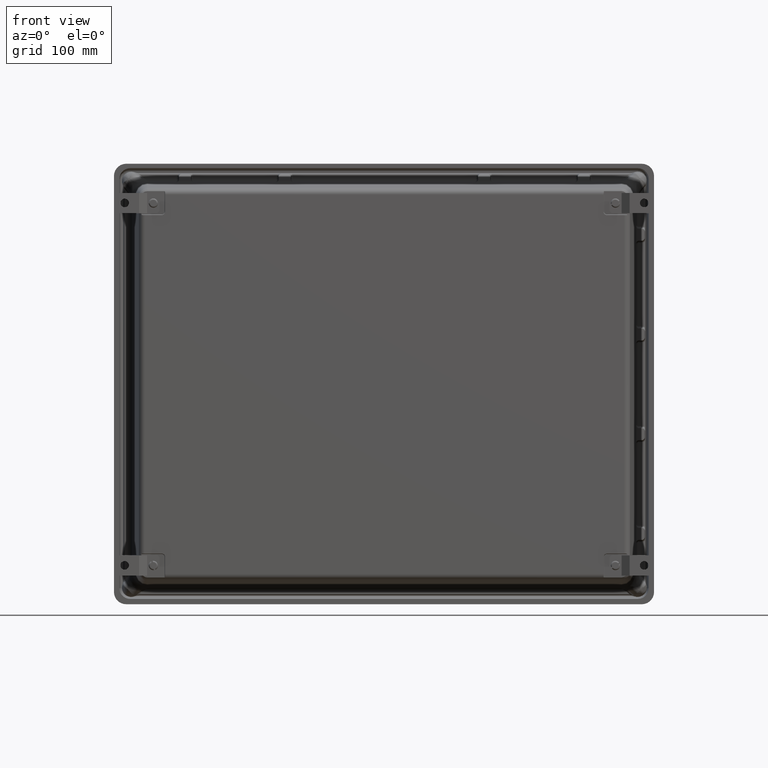
[diagram: clean part render]
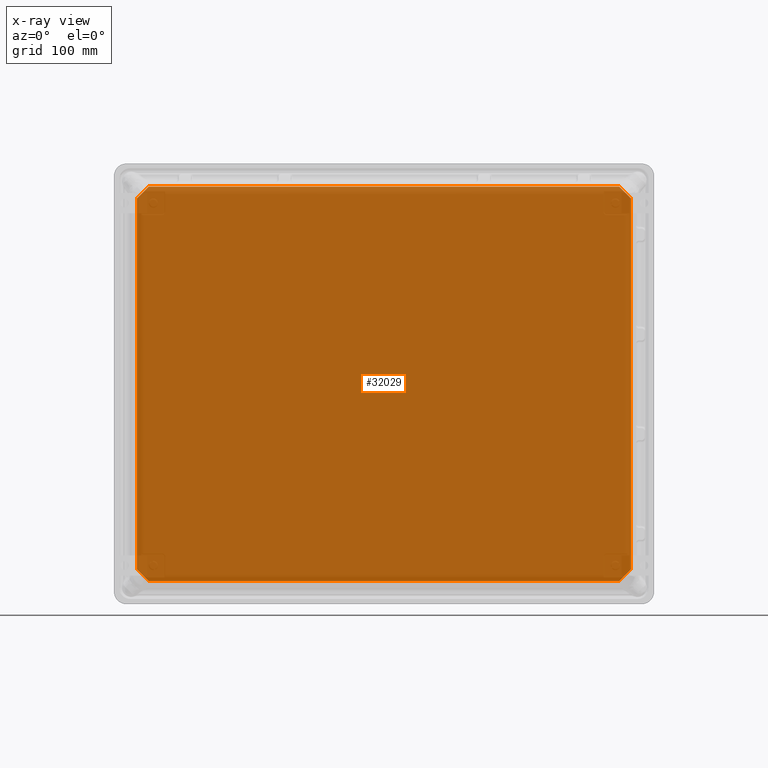
[diagram: x-ray — body ghosted, one internal face saturated and labeled with its STEP entity id]
A machine part, front view, then the same camera in x-ray: the body is ghosted and one INTERNAL B-rep face — a face not visible from any outside direction — is saturated and labeled: STEP entity #32029.
In plain terms, the highlighted planar face has unit normal (0, -1, 0).
Its self-contained STEP definition (entity closure, byte-faithful):
#92 = LINE ( 'NONE', #24255, #28368 ) ;
#439 = DIRECTION ( 'NONE',  ( 1.461662917958406600E-016, 0.0000000000000000000, -1.000000000000000000 ) ) ;
#653 = EDGE_CURVE ( 'NONE', #15058, #28261, #92, .T. ) ;
#733 = VECTOR ( 'NONE', #40039, 39.37007874015748100 ) ;
#1211 = LINE ( 'NONE', #13213, #23114 ) ;
#1240 = VERTEX_POINT ( 'NONE', #43326 ) ;
#1317 = CARTESIAN_POINT ( 'NONE',  ( 9.442008076503473300, -0.1299999999999999800, -7.924072769686829600 ) ) ;
#1334 = EDGE_CURVE ( 'NONE', #16501, #37701, #11909, .T. ) ;
#1457 = VERTEX_POINT ( 'NONE', #9618 ) ;
#1801 = EDGE_CURVE ( 'NONE', #18219, #23639, #35557, .T. ) ;
#2155 = CARTESIAN_POINT ( 'NONE',  ( -9.914683021579186600, -0.1299999999999999800, 7.460152862994095600 ) ) ;
#2781 = CARTESIAN_POINT ( 'NONE',  ( 9.917882022676671700, -0.1299999999999999500, -7.456953861896608700 ) ) ;
#3775 = ORIENTED_EDGE ( 'NONE', *, *, #5519, .T. ) ;
#3845 = CARTESIAN_POINT ( 'NONE',  ( -9.456953861896611400, -0.1299999999999999800, 7.917882022676669100 ) ) ;
#4006 = CARTESIAN_POINT ( 'NONE',  ( -9.921713424197818700, -0.1300000000000000000, -7.449785841986587400 ) ) ;
#4069 =( BOUNDED_CURVE ( )  B_SPLINE_CURVE ( 3, ( #40422, #25781, #33215, #11127 ),
 .UNSPECIFIED., .F., .F. ) 
 B_SPLINE_CURVE_WITH_KNOTS ( ( 4, 4 ),
 ( 0.0000000000000000000, 0.3926359957911200700 ),
 .UNSPECIFIED. ) 
 CURVE ( )  GEOMETRIC_REPRESENTATION_ITEM ( )  RATIONAL_B_SPLINE_CURVE ( ( 1.000000000000000000, 0.9871942890935493400, 0.9871942890935493400, 1.000000000000000000 ) ) 
 REPRESENTATION_ITEM ( '' )  );
#4292 = CARTESIAN_POINT ( 'NONE',  ( -10.35700000000000100, -0.1299999999999999800, -8.356999999999997500 ) ) ;
#4414 = CARTESIAN_POINT ( 'NONE',  ( -9.437924450141576200, -0.1299999999999999800, -7.924072769686830500 ) ) ;
#4593 = CARTESIAN_POINT ( 'NONE',  ( 9.459841421788940600, -0.1299999999999999800, 7.914994462784341600 ) ) ;
#4671 =( BOUNDED_CURVE ( )  B_SPLINE_CURVE ( 3, ( #4006, #7695, #33487, #11395 ),
 .UNSPECIFIED., .F., .F. ) 
 B_SPLINE_CURVE_WITH_KNOTS ( ( 4, 4 ),
 ( 1.438901791017705900E-014, 0.3926359957911074200 ),
 .UNSPECIFIED. ) 
 CURVE ( )  GEOMETRIC_REPRESENTATION_ITEM ( )  RATIONAL_B_SPLINE_CURVE ( ( 1.000000000000000000, 0.9871942890935511100, 0.9871942890935511100, 1.000000000000000000 ) ) 
 REPRESENTATION_ITEM ( '' )  );
#4824 =( BOUNDED_CURVE ( )  B_SPLINE_CURVE ( 3, ( #32280, #43030, #6507, #10211 ),
 .UNSPECIFIED., .F., .F. ) 
 B_SPLINE_CURVE_WITH_KNOTS ( ( 4, 4 ),
 ( 5.890549311388480400, 6.283185307179540900 ),
 .UNSPECIFIED. ) 
 CURVE ( )  GEOMETRIC_REPRESENTATION_ITEM ( )  RATIONAL_B_SPLINE_CURVE ( ( 1.000000000000000000, 0.9871942890935532200, 0.9871942890935532200, 1.000000000000000000 ) ) 
 REPRESENTATION_ITEM ( '' )  );
#4915 = ORIENTED_EDGE ( 'NONE', *, *, #11094, .T. ) ;
#5519 = EDGE_CURVE ( 'NONE', #32880, #18219, #10994, .T. ) ;
#5831 = CARTESIAN_POINT ( 'NONE',  ( 9.924072769686830500, -0.1299999999999999800, 7.437924450141573600 ) ) ;
#5919 = DIRECTION ( 'NONE',  ( 0.7071067811865468000, 0.0000000000000000000, 0.7071067811865483500 ) ) ;
#6111 = ORIENTED_EDGE ( 'NONE', *, *, #1801, .T. ) ;
#6134 = CARTESIAN_POINT ( 'NONE',  ( -9.921713424197818700, -0.1300000000000000000, -7.449785841986587400 ) ) ;
#6208 = DIRECTION ( 'NONE',  ( 0.7071067811865460200, 0.0000000000000000000, -0.7071067811865490200 ) ) ;
#6347 =( BOUNDED_CURVE ( )  B_SPLINE_CURVE ( 3, ( #4593, #26652, #34070, #11985 ),
 .UNSPECIFIED., .F., .F. ) 
 B_SPLINE_CURVE_WITH_KNOTS ( ( 4, 4 ),
 ( 5.890549311388479500, 6.283185307179572900 ),
 .UNSPECIFIED. ) 
 CURVE ( )  GEOMETRIC_REPRESENTATION_ITEM ( )  RATIONAL_B_SPLINE_CURVE ( ( 1.000000000000000000, 0.9871942890935511100, 0.9871942890935511100, 1.000000000000000000 ) ) 
 REPRESENTATION_ITEM ( '' )  );
#6395 = CARTESIAN_POINT ( 'NONE',  ( -9.924072769686823400, -0.1299999999999999800, -7.437924450141578900 ) ) ;
#6507 = CARTESIAN_POINT ( 'NONE',  ( -9.920150728876896200, -0.1300000000000000000, 7.453558522224218700 ) ) ;
#6670 = CARTESIAN_POINT ( 'NONE',  ( 9.921713424197824000, -0.1300000000000000000, -7.449785841986582100 ) ) ;
#7026 = EDGE_CURVE ( 'NONE', #38785, #34598, #8303, .T. ) ;
#7453 =( BOUNDED_CURVE ( )  B_SPLINE_CURVE ( 3, ( #39606, #13863, #43291, #21280 ),
 .UNSPECIFIED., .F., .F. ) 
 B_SPLINE_CURVE_WITH_KNOTS ( ( 4, 4 ),
 ( 5.890549311388480400, 6.283185307179527600 ),
 .UNSPECIFIED. ) 
 CURVE ( )  GEOMETRIC_REPRESENTATION_ITEM ( )  RATIONAL_B_SPLINE_CURVE ( ( 1.000000000000000000, 0.9871942890935541100, 0.9871942890935541100, 1.000000000000000000 ) ) 
 REPRESENTATION_ITEM ( '' )  );
#7517 = LINE ( 'NONE', #13604, #35785 ) ;
#7529 = CARTESIAN_POINT ( 'NONE',  ( -9.459841421788938800, -0.1299999999999999800, 7.914994462784341600 ) ) ;
#7695 = CARTESIAN_POINT ( 'NONE',  ( -9.920150728876894400, -0.1300000000000000000, -7.453558522224223100 ) ) ;
#7830 = PLANE ( 'NONE',  #41594 ) ;
#7840 = VERTEX_POINT ( 'NONE', #11826 ) ;
#8015 = EDGE_CURVE ( 'NONE', #23639, #35731, #30255, .T. ) ;
#8087 = EDGE_CURVE ( 'NONE', #35731, #46216, #4824, .T. ) ;
#8303 =( BOUNDED_CURVE ( )  B_SPLINE_CURVE ( 3, ( #6670, #17635, #39661, #32440 ),
 .UNSPECIFIED., .F., .T. ) 
 B_SPLINE_CURVE_WITH_KNOTS ( ( 4, 4 ),
 ( 0.0000000000000000000, 0.3926359957911189100 ),
 .UNSPECIFIED. ) 
 CURVE ( )  GEOMETRIC_REPRESENTATION_ITEM ( )  RATIONAL_B_SPLINE_CURVE ( ( 1.000000000000000000, 0.9871942890935493400, 0.9871942890935493400, 1.000000000000000000 ) ) 
 REPRESENTATION_ITEM ( '' )  );
#8476 = CARTESIAN_POINT ( 'NONE',  ( 9.914994462784342500, -0.1299999999999999800, 7.459841421788937100 ) ) ;
#8531 = VERTEX_POINT ( 'NONE', #16913 ) ;
#9618 = CARTESIAN_POINT ( 'NONE',  ( -9.924072769686823400, -0.1299999999999999800, -7.437924450141578900 ) ) ;
#9854 = EDGE_CURVE ( 'NONE', #7840, #14421, #24280, .T. ) ;
#10211 = CARTESIAN_POINT ( 'NONE',  ( -9.921713424197820400, -0.1300000000000000000, 7.449785841986584800 ) ) ;
#10339 = CARTESIAN_POINT ( 'NONE',  ( 9.921713424197824000, -0.1300000000000000000, -7.449785841986582100 ) ) ;
#10622 = CARTESIAN_POINT ( 'NONE',  ( -9.437924450141576200, -0.1299999999999999800, 7.924072769686826100 ) ) ;
#10994 =( BOUNDED_CURVE ( )  B_SPLINE_CURVE ( 3, ( #10622, #40069, #21746, #47445 ),
 .UNSPECIFIED., .F., .T. ) 
 B_SPLINE_CURVE_WITH_KNOTS ( ( 4, 4 ),
 ( 5.890549311388467000, 6.283185307179600400 ),
 .UNSPECIFIED. ) 
 CURVE ( )  GEOMETRIC_REPRESENTATION_ITEM ( )  RATIONAL_B_SPLINE_CURVE ( ( 1.000000000000000000, 0.9871942890935484500, 0.9871942890935484500, 1.000000000000000000 ) ) 
 REPRESENTATION_ITEM ( '' )  );
#11082 = CARTESIAN_POINT ( 'NONE',  ( -9.453558522224218700, -0.1299999999999999800, 7.920150728876894400 ) ) ;
#11094 = EDGE_CURVE ( 'NONE', #44281, #21556, #31496, .T. ) ;
#11127 = CARTESIAN_POINT ( 'NONE',  ( -9.924072769686826900, -0.1299999999999999800, 7.437924450141573600 ) ) ;
#11395 = CARTESIAN_POINT ( 'NONE',  ( -9.914994462784338900, -0.1299999999999999800, -7.459841421788941500 ) ) ;
#11400 = CARTESIAN_POINT ( 'NONE',  ( -9.924072769686823400, -0.1299999999999999800, -7.437484005765366400 ) ) ;
#11430 = CARTESIAN_POINT ( 'NONE',  ( 9.437924450141576200, -0.1299999999999999800, 7.924072769686826100 ) ) ;
#11826 = CARTESIAN_POINT ( 'NONE',  ( 9.924072769686830500, -0.1299999999999999800, 7.437924450141573600 ) ) ;
#11909 =( BOUNDED_CURVE ( )  B_SPLINE_CURVE ( 3, ( #40739, #29788, #33512, #11430 ),
 .UNSPECIFIED., .F., .F. ) 
 B_SPLINE_CURVE_WITH_KNOTS ( ( 4, 4 ),
 ( 0.0000000000000000000, 0.3926359957911194100 ),
 .UNSPECIFIED. ) 
 CURVE ( )  GEOMETRIC_REPRESENTATION_ITEM ( )  RATIONAL_B_SPLINE_CURVE ( ( 1.000000000000000000, 0.9871942890935493400, 0.9871942890935493400, 1.000000000000000000 ) ) 
 REPRESENTATION_ITEM ( '' )  );
#11952 = ORIENTED_EDGE ( 'NONE', *, *, #37217, .T. ) ;
#11985 = CARTESIAN_POINT ( 'NONE',  ( 9.449785841986585700, -0.1300000000000000000, 7.921713424197819500 ) ) ;
#12277 = DIRECTION ( 'NONE',  ( -1.461662917958407600E-016, 0.0000000000000000000, 1.000000000000000000 ) ) ;
#12449 = CARTESIAN_POINT ( 'NONE',  ( 9.924072769686830500, -0.1299999999999999800, 7.437484005765361100 ) ) ;
#12813 = ORIENTED_EDGE ( 'NONE', *, *, #32198, .T. ) ;
#13143 = ORIENTED_EDGE ( 'NONE', *, *, #25817, .T. ) ;
#13213 = CARTESIAN_POINT ( 'NONE',  ( 9.460152862994096500, -0.1299999999999999800, 7.914683021579186600 ) ) ;
#13235 = CARTESIAN_POINT ( 'NONE',  ( 9.921713424197820400, -0.1300000000000000000, 7.449785841986582100 ) ) ;
#13496 = CARTESIAN_POINT ( 'NONE',  ( -9.924072769686825200, -0.1299999999999999800, -7.442008076503475100 ) ) ;
#13548 = EDGE_CURVE ( 'NONE', #37701, #32880, #42204, .T. ) ;
#13604 = CARTESIAN_POINT ( 'NONE',  ( 9.437484005765364600, -0.1299999999999999800, -7.924072769686827800 ) ) ;
#13805 = CARTESIAN_POINT ( 'NONE',  ( -9.921713424197818700, -0.1300000000000000000, -7.449785841986587400 ) ) ;
#13863 = CARTESIAN_POINT ( 'NONE',  ( -9.456953861896614900, -0.1299999999999999800, -7.917882022676673500 ) ) ;
#14421 = VERTEX_POINT ( 'NONE', #15820 ) ;
#14556 =( BOUNDED_CURVE ( )  B_SPLINE_CURVE ( 3, ( #16410, #42143, #20114, #45830 ),
 .UNSPECIFIED., .F., .F. ) 
 B_SPLINE_CURVE_WITH_KNOTS ( ( 4, 4 ),
 ( 4.564554485381464600E-014, 0.3926359957910561800 ),
 .UNSPECIFIED. ) 
 CURVE ( )  GEOMETRIC_REPRESENTATION_ITEM ( )  RATIONAL_B_SPLINE_CURVE ( ( 1.000000000000000000, 0.9871942890935564400, 0.9871942890935564400, 1.000000000000000000 ) ) 
 REPRESENTATION_ITEM ( '' )  );
#15058 = VERTEX_POINT ( 'NONE', #40427 ) ;
#15390 = EDGE_CURVE ( 'NONE', #46387, #34809, #1211, .T. ) ;
#15394 = DIRECTION ( 'NONE',  ( 0.0000000000000000000, -0.0000000000000000000, -1.000000000000000000 ) ) ;
#15397 = ORIENTED_EDGE ( 'NONE', *, *, #19901, .T. ) ;
#15820 = CARTESIAN_POINT ( 'NONE',  ( 9.921713424197820400, -0.1300000000000000000, 7.449785841986582100 ) ) ;
#15920 = EDGE_CURVE ( 'NONE', #34809, #16501, #6347, .T. ) ;
#16410 = CARTESIAN_POINT ( 'NONE',  ( 9.449785841986587400, -0.1300000000000000000, -7.921713424197821300 ) ) ;
#16501 = VERTEX_POINT ( 'NONE', #45546 ) ;
#16913 = CARTESIAN_POINT ( 'NONE',  ( -9.914994462784338900, -0.1299999999999999800, -7.459841421788941500 ) ) ;
#17015 = CARTESIAN_POINT ( 'NONE',  ( 9.914994462784344300, -0.1299999999999999800, -7.459841421788937100 ) ) ;
#17635 = CARTESIAN_POINT ( 'NONE',  ( 9.923276119518748200, -0.1299999999999999800, -7.446013161748947300 ) ) ;
#18009 = CARTESIAN_POINT ( 'NONE',  ( -9.437484005765364600, -0.1299999999999999800, 7.924072769686825200 ) ) ;
#18219 = VERTEX_POINT ( 'NONE', #45655 ) ;
#19068 = CARTESIAN_POINT ( 'NONE',  ( -9.449785841986587400, -0.1300000000000000000, -7.921713424197823100 ) ) ;
#19160 = VECTOR ( 'NONE', #6208, 39.37007874015748900 ) ;
#19901 = EDGE_CURVE ( 'NONE', #1240, #21539, #7453, .T. ) ;
#20114 = CARTESIAN_POINT ( 'NONE',  ( 9.456953861896611400, -0.1299999999999999800, -7.917882022676673500 ) ) ;
#20334 =( BOUNDED_CURVE ( )  B_SPLINE_CURVE ( 3, ( #24982, #2781, #32418, #10339 ),
 .UNSPECIFIED., .F., .F. ) 
 B_SPLINE_CURVE_WITH_KNOTS ( ( 4, 4 ),
 ( 5.890549311388428900, 6.283185307179539200 ),
 .UNSPECIFIED. ) 
 CURVE ( )  GEOMETRIC_REPRESENTATION_ITEM ( )  RATIONAL_B_SPLINE_CURVE ( ( 1.000000000000000000, 0.9871942890935498900, 0.9871942890935498900, 1.000000000000000000 ) ) 
 REPRESENTATION_ITEM ( '' )  );
#21280 = CARTESIAN_POINT ( 'NONE',  ( -9.449785841986587400, -0.1300000000000000000, -7.921713424197823100 ) ) ;
#21539 = VERTEX_POINT ( 'NONE', #22849 ) ;
#21556 = VERTEX_POINT ( 'NONE', #37822 ) ;
#21746 = CARTESIAN_POINT ( 'NONE',  ( -9.446013161748952700, -0.1299999999999999800, 7.923276119518743800 ) ) ;
#22330 = ORIENTED_EDGE ( 'NONE', *, *, #8087, .T. ) ;
#22849 = CARTESIAN_POINT ( 'NONE',  ( -9.449785841986587400, -0.1300000000000000000, -7.921713424197823100 ) ) ;
#23114 = VECTOR ( 'NONE', #28030, 39.37007874015748900 ) ;
#23204 = ORIENTED_EDGE ( 'NONE', *, *, #36225, .T. ) ;
#23639 = VERTEX_POINT ( 'NONE', #32649 ) ;
#23690 = ORIENTED_EDGE ( 'NONE', *, *, #27639, .T. ) ;
#24255 = CARTESIAN_POINT ( 'NONE',  ( 9.914683021579186600, -0.1299999999999999800, -7.460152862994095600 ) ) ;
#24280 =( BOUNDED_CURVE ( )  B_SPLINE_CURVE ( 3, ( #5831, #27890, #35296, #13235 ),
 .UNSPECIFIED., .F., .F. ) 
 B_SPLINE_CURVE_WITH_KNOTS ( ( 4, 4 ),
 ( 5.890549311388501700, 6.283185307179599600 ),
 .UNSPECIFIED. ) 
 CURVE ( )  GEOMETRIC_REPRESENTATION_ITEM ( )  RATIONAL_B_SPLINE_CURVE ( ( 1.000000000000000000, 0.9871942890935507800, 0.9871942890935507800, 1.000000000000000000 ) ) 
 REPRESENTATION_ITEM ( '' )  );
#24541 = CARTESIAN_POINT ( 'NONE',  ( -9.460152862994096500, -0.1299999999999999800, -7.914683021579189200 ) ) ;
#24590 = EDGE_CURVE ( 'NONE', #34598, #7840, #24900, .T. ) ;
#24900 = LINE ( 'NONE', #12449, #27227 ) ;
#24982 = CARTESIAN_POINT ( 'NONE',  ( 9.914994462784344300, -0.1299999999999999800, -7.459841421788937100 ) ) ;
#25316 = CARTESIAN_POINT ( 'NONE',  ( 9.924072769686830500, -0.1299999999999999800, -7.437924450141570900 ) ) ;
#25781 = CARTESIAN_POINT ( 'NONE',  ( -9.923276119518746400, -0.1299999999999999800, 7.446013161748949100 ) ) ;
#25817 = EDGE_CURVE ( 'NONE', #30743, #44281, #7517, .T. ) ;
#26459 = CARTESIAN_POINT ( 'NONE',  ( -9.442008076503473300, -0.1299999999999999800, -7.924072769686831400 ) ) ;
#26652 = CARTESIAN_POINT ( 'NONE',  ( 9.456953861896613100, -0.1300000000000000000, 7.917882022676670900 ) ) ;
#26864 = CARTESIAN_POINT ( 'NONE',  ( -9.437924450141576200, -0.1299999999999999800, -7.924072769686830500 ) ) ;
#26865 = CARTESIAN_POINT ( 'NONE',  ( 9.921713424197820400, -0.1300000000000000000, 7.449785841986582100 ) ) ;
#27227 = VECTOR ( 'NONE', #12277, 39.37007874015748100 ) ;
#27639 = EDGE_CURVE ( 'NONE', #14421, #46387, #33489, .T. ) ;
#27645 = ORIENTED_EDGE ( 'NONE', *, *, #653, .T. ) ;
#27890 = CARTESIAN_POINT ( 'NONE',  ( 9.924072769686826900, -0.1299999999999999800, 7.442008076503469700 ) ) ;
#28030 = DIRECTION ( 'NONE',  ( -0.7071067811865474600, 0.0000000000000000000, 0.7071067811865474600 ) ) ;
#28261 = VERTEX_POINT ( 'NONE', #17015 ) ;
#28284 = CARTESIAN_POINT ( 'NONE',  ( 9.914994462784342500, -0.1299999999999999800, 7.459841421788937100 ) ) ;
#28368 = VECTOR ( 'NONE', #5919, 39.37007874015748100 ) ;
#29525 = ORIENTED_EDGE ( 'NONE', *, *, #36775, .T. ) ;
#29645 = VECTOR ( 'NONE', #439, 39.37007874015748100 ) ;
#29788 = CARTESIAN_POINT ( 'NONE',  ( 9.446013161748952700, -0.1299999999999999800, 7.923276119518745600 ) ) ;
#30255 = LINE ( 'NONE', #2155, #31432 ) ;
#30465 = EDGE_CURVE ( 'NONE', #21556, #15058, #14556, .T. ) ;
#30468 = ORIENTED_EDGE ( 'NONE', *, *, #7026, .T. ) ;
#30564 = CARTESIAN_POINT ( 'NONE',  ( 9.917882022676670000, -0.1299999999999999800, 7.456953861896608700 ) ) ;
#30743 = VERTEX_POINT ( 'NONE', #26864 ) ;
#30794 = CARTESIAN_POINT ( 'NONE',  ( 9.459841421788940600, -0.1299999999999999800, 7.914994462784341600 ) ) ;
#30974 = ORIENTED_EDGE ( 'NONE', *, *, #8015, .T. ) ;
#31432 = VECTOR ( 'NONE', #46235, 39.37007874015748100 ) ;
#31496 =( BOUNDED_CURVE ( )  B_SPLINE_CURVE ( 3, ( #42017, #1317, #45559, #45705 ),
 .UNSPECIFIED., .F., .F. ) 
 B_SPLINE_CURVE_WITH_KNOTS ( ( 4, 4 ),
 ( 5.890549311388466200, 6.283185307179631500 ),
 .UNSPECIFIED. ) 
 CURVE ( )  GEOMETRIC_REPRESENTATION_ITEM ( )  RATIONAL_B_SPLINE_CURVE ( ( 1.000000000000000000, 0.9871942890935463400, 0.9871942890935463400, 1.000000000000000000 ) ) 
 REPRESENTATION_ITEM ( '' )  );
#32029 = ADVANCED_FACE ( 'NONE', ( #44492 ), #7830, .T. ) ;
#32194 = ORIENTED_EDGE ( 'NONE', *, *, #15390, .T. ) ;
#32198 = EDGE_CURVE ( 'NONE', #8531, #1240, #38741, .T. ) ;
#32280 = CARTESIAN_POINT ( 'NONE',  ( -9.914994462784344300, -0.1299999999999999800, 7.459841421788939700 ) ) ;
#32418 = CARTESIAN_POINT ( 'NONE',  ( 9.920150728876898000, -0.1299999999999999500, -7.453558522224216000 ) ) ;
#32440 = CARTESIAN_POINT ( 'NONE',  ( 9.924072769686830500, -0.1299999999999999800, -7.437924450141570900 ) ) ;
#32649 = CARTESIAN_POINT ( 'NONE',  ( -9.459841421788938800, -0.1299999999999999800, 7.914994462784341600 ) ) ;
#32880 = VERTEX_POINT ( 'NONE', #41397 ) ;
#33215 = CARTESIAN_POINT ( 'NONE',  ( -9.924072769686826900, -0.1299999999999999800, 7.442008076503469700 ) ) ;
#33459 = VERTEX_POINT ( 'NONE', #47764 ) ;
#33487 = CARTESIAN_POINT ( 'NONE',  ( -9.917882022676668200, -0.1300000000000000000, -7.456953861896614000 ) ) ;
#33489 =( BOUNDED_CURVE ( )  B_SPLINE_CURVE ( 3, ( #26865, #45168, #30564, #8476 ),
 .UNSPECIFIED., .F., .F. ) 
 B_SPLINE_CURVE_WITH_KNOTS ( ( 4, 4 ),
 ( 1.342516025112214000E-014, 0.3926359957911314000 ),
 .UNSPECIFIED. ) 
 CURVE ( )  GEOMETRIC_REPRESENTATION_ITEM ( )  RATIONAL_B_SPLINE_CURVE ( ( 1.000000000000000000, 0.9871942890935493400, 0.9871942890935493400, 1.000000000000000000 ) ) 
 REPRESENTATION_ITEM ( '' )  );
#33512 = CARTESIAN_POINT ( 'NONE',  ( 9.442008076503473300, -0.1299999999999999800, 7.924072769686826900 ) ) ;
#33927 = CARTESIAN_POINT ( 'NONE',  ( -9.921713424197820400, -0.1300000000000000000, 7.449785841986584800 ) ) ;
#34070 = CARTESIAN_POINT ( 'NONE',  ( 9.453558522224220400, -0.1300000000000000000, 7.920150728876896200 ) ) ;
#34598 = VERTEX_POINT ( 'NONE', #25316 ) ;
#34761 = ORIENTED_EDGE ( 'NONE', *, *, #37026, .T. ) ;
#34809 = VERTEX_POINT ( 'NONE', #30794 ) ;
#35296 = CARTESIAN_POINT ( 'NONE',  ( 9.923276119518746400, -0.1299999999999999800, 7.446013161748948200 ) ) ;
#35456 = ORIENTED_EDGE ( 'NONE', *, *, #24590, .T. ) ;
#35557 =( BOUNDED_CURVE ( )  B_SPLINE_CURVE ( 3, ( #36849, #11082, #3845, #7529 ),
 .UNSPECIFIED., .F., .F. ) 
 B_SPLINE_CURVE_WITH_KNOTS ( ( 4, 4 ),
 ( 1.390708908064960100E-014, 0.3926359957910571200 ),
 .UNSPECIFIED. ) 
 CURVE ( )  GEOMETRIC_REPRESENTATION_ITEM ( )  RATIONAL_B_SPLINE_CURVE ( ( 1.000000000000000000, 0.9871942890935543300, 0.9871942890935543300, 1.000000000000000000 ) ) 
 REPRESENTATION_ITEM ( '' )  );
#35623 = ORIENTED_EDGE ( 'NONE', *, *, #9854, .T. ) ;
#35690 = ORIENTED_EDGE ( 'NONE', *, *, #41228, .T. ) ;
#35731 = VERTEX_POINT ( 'NONE', #38376 ) ;
#35785 = VECTOR ( 'NONE', #39341, 39.37007874015748100 ) ;
#35861 = CARTESIAN_POINT ( 'NONE',  ( -9.923276119518742900, -0.1299999999999999800, -7.446013161748953600 ) ) ;
#35931 = EDGE_LOOP ( 'NONE', ( #42671, #36728, #39045, #3775, #6111, #30974, #22330, #43280, #35690, #34761, #29525, #12813, #15397, #11952, #13143, #4915, #43867, #27645, #23204, #30468, #35456, #35623, #23690, #32194 ) ) ;
#36225 = EDGE_CURVE ( 'NONE', #28261, #38785, #20334, .T. ) ;
#36728 = ORIENTED_EDGE ( 'NONE', *, *, #1334, .T. ) ;
#36775 = EDGE_CURVE ( 'NONE', #39973, #8531, #4671, .T. ) ;
#36845 =( BOUNDED_CURVE ( )  B_SPLINE_CURVE ( 3, ( #19068, #41106, #26459, #4414 ),
 .UNSPECIFIED., .F., .F. ) 
 B_SPLINE_CURVE_WITH_KNOTS ( ( 4, 4 ),
 ( 0.0000000000000000000, 0.3926359957911206800 ),
 .UNSPECIFIED. ) 
 CURVE ( )  GEOMETRIC_REPRESENTATION_ITEM ( )  RATIONAL_B_SPLINE_CURVE ( ( 1.000000000000000000, 0.9871942890935493400, 0.9871942890935493400, 1.000000000000000000 ) ) 
 REPRESENTATION_ITEM ( '' )  );
#36849 = CARTESIAN_POINT ( 'NONE',  ( -9.449785841986585700, -0.1300000000000000000, 7.921713424197819500 ) ) ;
#37026 = EDGE_CURVE ( 'NONE', #1457, #39973, #40367, .T. ) ;
#37217 = EDGE_CURVE ( 'NONE', #21539, #30743, #36845, .T. ) ;
#37457 = DIRECTION ( 'NONE',  ( 0.0000000000000000000, -1.000000000000000000, 0.0000000000000000000 ) ) ;
#37501 = EDGE_CURVE ( 'NONE', #46216, #33459, #4069, .T. ) ;
#37701 = VERTEX_POINT ( 'NONE', #45846 ) ;
#37822 = CARTESIAN_POINT ( 'NONE',  ( 9.449785841986587400, -0.1300000000000000000, -7.921713424197821300 ) ) ;
#38376 = CARTESIAN_POINT ( 'NONE',  ( -9.914994462784344300, -0.1299999999999999800, 7.459841421788939700 ) ) ;
#38741 = LINE ( 'NONE', #24541, #19160 ) ;
#38785 = VERTEX_POINT ( 'NONE', #44709 ) ;
#39045 = ORIENTED_EDGE ( 'NONE', *, *, #13548, .T. ) ;
#39341 = DIRECTION ( 'NONE',  ( 1.000000000000000000, 0.0000000000000000000, 1.153165045869254200E-016 ) ) ;
#39606 = CARTESIAN_POINT ( 'NONE',  ( -9.459841421788940600, -0.1299999999999999800, -7.914994462784346000 ) ) ;
#39661 = CARTESIAN_POINT ( 'NONE',  ( 9.924072769686832300, -0.1299999999999999800, -7.442008076503468000 ) ) ;
#39973 = VERTEX_POINT ( 'NONE', #6134 ) ;
#40039 = DIRECTION ( 'NONE',  ( -1.000000000000000000, 0.0000000000000000000, 0.0000000000000000000 ) ) ;
#40069 = CARTESIAN_POINT ( 'NONE',  ( -9.442008076503473300, -0.1299999999999999800, 7.924072769686826100 ) ) ;
#40367 =( BOUNDED_CURVE ( )  B_SPLINE_CURVE ( 3, ( #6395, #13496, #35861, #13805 ),
 .UNSPECIFIED., .F., .F. ) 
 B_SPLINE_CURVE_WITH_KNOTS ( ( 4, 4 ),
 ( 5.890549311388502600, 6.283185307179600400 ),
 .UNSPECIFIED. ) 
 CURVE ( )  GEOMETRIC_REPRESENTATION_ITEM ( )  RATIONAL_B_SPLINE_CURVE ( ( 1.000000000000000000, 0.9871942890935507800, 0.9871942890935507800, 1.000000000000000000 ) ) 
 REPRESENTATION_ITEM ( '' )  );
#40422 = CARTESIAN_POINT ( 'NONE',  ( -9.921713424197820400, -0.1300000000000000000, 7.449785841986584800 ) ) ;
#40427 = CARTESIAN_POINT ( 'NONE',  ( 9.459841421788938800, -0.1299999999999999800, -7.914994462784343400 ) ) ;
#40585 = LINE ( 'NONE', #11400, #29645 ) ;
#40739 = CARTESIAN_POINT ( 'NONE',  ( 9.449785841986585700, -0.1300000000000000000, 7.921713424197819500 ) ) ;
#41106 = CARTESIAN_POINT ( 'NONE',  ( -9.446013161748952700, -0.1299999999999999800, -7.923276119518749100 ) ) ;
#41228 = EDGE_CURVE ( 'NONE', #33459, #1457, #40585, .T. ) ;
#41397 = CARTESIAN_POINT ( 'NONE',  ( -9.437924450141576200, -0.1299999999999999800, 7.924072769686826100 ) ) ;
#41518 = CARTESIAN_POINT ( 'NONE',  ( 9.437924450141576200, -0.1299999999999999800, -7.924072769686827800 ) ) ;
#41594 = AXIS2_PLACEMENT_3D ( 'NONE', #4292, #37457, #15394 ) ;
#42017 = CARTESIAN_POINT ( 'NONE',  ( 9.437924450141576200, -0.1299999999999999800, -7.924072769686827800 ) ) ;
#42143 = CARTESIAN_POINT ( 'NONE',  ( 9.453558522224220400, -0.1299999999999999800, -7.920150728876896200 ) ) ;
#42204 = LINE ( 'NONE', #18009, #733 ) ;
#42671 = ORIENTED_EDGE ( 'NONE', *, *, #15920, .T. ) ;
#43030 = CARTESIAN_POINT ( 'NONE',  ( -9.917882022676670000, -0.1300000000000000000, 7.456953861896611400 ) ) ;
#43280 = ORIENTED_EDGE ( 'NONE', *, *, #37501, .T. ) ;
#43291 = CARTESIAN_POINT ( 'NONE',  ( -9.453558522224220400, -0.1299999999999999800, -7.920150728876898900 ) ) ;
#43326 = CARTESIAN_POINT ( 'NONE',  ( -9.459841421788940600, -0.1299999999999999800, -7.914994462784346000 ) ) ;
#43867 = ORIENTED_EDGE ( 'NONE', *, *, #30465, .T. ) ;
#44281 = VERTEX_POINT ( 'NONE', #41518 ) ;
#44492 = FACE_OUTER_BOUND ( 'NONE', #35931, .T. ) ;
#44709 = CARTESIAN_POINT ( 'NONE',  ( 9.921713424197824000, -0.1300000000000000000, -7.449785841986582100 ) ) ;
#45168 = CARTESIAN_POINT ( 'NONE',  ( 9.920150728876896200, -0.1299999999999999800, 7.453558522224217800 ) ) ;
#45546 = CARTESIAN_POINT ( 'NONE',  ( 9.449785841986585700, -0.1300000000000000000, 7.921713424197819500 ) ) ;
#45559 = CARTESIAN_POINT ( 'NONE',  ( 9.446013161748954400, -0.1299999999999999800, -7.923276119518747300 ) ) ;
#45655 = CARTESIAN_POINT ( 'NONE',  ( -9.449785841986585700, -0.1300000000000000000, 7.921713424197819500 ) ) ;
#45705 = CARTESIAN_POINT ( 'NONE',  ( 9.449785841986587400, -0.1300000000000000000, -7.921713424197821300 ) ) ;
#45830 = CARTESIAN_POINT ( 'NONE',  ( 9.459841421788938800, -0.1299999999999999800, -7.914994462784343400 ) ) ;
#45846 = CARTESIAN_POINT ( 'NONE',  ( 9.437924450141576200, -0.1299999999999999800, 7.924072769686826100 ) ) ;
#46216 = VERTEX_POINT ( 'NONE', #33927 ) ;
#46235 = DIRECTION ( 'NONE',  ( -0.7071067811865482400, 0.0000000000000000000, -0.7071067811865468000 ) ) ;
#46387 = VERTEX_POINT ( 'NONE', #28284 ) ;
#47445 = CARTESIAN_POINT ( 'NONE',  ( -9.449785841986585700, -0.1300000000000000000, 7.921713424197819500 ) ) ;
#47764 = CARTESIAN_POINT ( 'NONE',  ( -9.924072769686826900, -0.1299999999999999800, 7.437924450141573600 ) ) ;